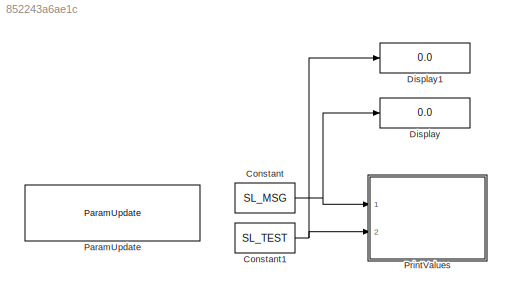
MODEL slx_852243a6ae1c
KIND model
CONFIG AbsTol = auto
CONFIG EnableMultiTasking = on
CONFIG FixedStep = auto
CONFIG InitFcn = %param_define;\n\nSL_MSG = Pixhawk_CSC.Parameter( {int32(1), 'SL_MSG'}  );\nSL_TEST = Pixhawk_CSC.Parameter( {single(14.7), 'SL_TEST'}  );
CONFIG MaxStep = auto
CONFIG MinStep = auto
CONFIG RelTol = 1e-3
CONFIG SampleTimeConstraint = Unconstrained
CONFIG Solver = FixedStepAuto
CONFIG SolverName = FixedStepAuto
CONFIG StartTime = 0.0
CONFIG StopTime = inf
BLOCK [Constant] Constant
  SampleTime = -1
  Value = SL_MSG
BLOCK [Constant] Constant1
  SampleTime = -1
  Value = SL_TEST
BLOCK [Display] Display
  Decimation = 1
  Ports = [1]
BLOCK [Display] Display1
  Decimation = 1
  Ports = [1]
BLOCK [Reference] ParamUpdate  REF=pixhawk_slib_misc_utils/ParamUpdate
  Ports = []
  SourceBlock = pixhawk_slib_misc_utils/ParamUpdate
  SourceProductName = Pixhawk Target Blocks
  UserDataPersistent = on
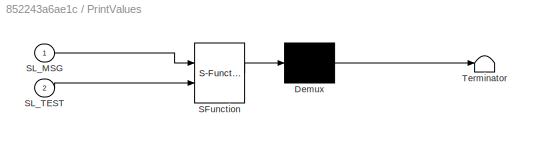
BLOCK [SubSystem] PrintValues
  ErrorFcn = Stateflow.Translate.translate
  PermitHierarchicalResolution = ExplicitOnly
  Ports = [2]
  RequestExecContextInheritance = off
  SFBlockType = MATLAB Function
  TreatAsAtomicUnit = on
  Variant = off
BLOCK [Demux] PrintValues/ Demux 
  Outputs = 1
  Ports = [1, 1]
BLOCK [S-Function] PrintValues/ SFunction 
  EnableBusSupport = on
  FunctionName = sf_sfun
  PortCounts = [2 1]
  Ports = [2, 1]
  SFcnIsStateOwnerBlock = off
  SFunctionDeploymentMode = off
  Tag = Stateflow S-Function px4demo_QGC_tune 2
BLOCK [Terminator] PrintValues/ Terminator 
BLOCK [Inport] PrintValues/SL_MSG
  IconDisplay = Port number
BLOCK [Inport] PrintValues/SL_TEST
  IconDisplay = Port number
  Port = 2
NET Constant1:1 -> Display1:1, PrintValues:2
NET Constant:1 -> Display:1, PrintValues:1
note: NET lines group one-source signal fan-out (src -> all destinations, sorted); 1:1 wires keep LINE
CHART PrintValues states=1 transitions=1
  STATE_LABEL 'eML_blk_kernel()'
  STATE_LABEL "SCRIPT:\nfunction print_fcn(SL_MSG,SL_TEST)\nif coder.target('rtw')\nmsg_str = coder.const(['SL_MSG = %d SL_TEST = %8.4f',uint8(10),uint8(0)]);\ncoder.ceval('PX4_INFO',coder.rref(msg_str),SL_MSG,SL_TEST);\nend\nend\n"
